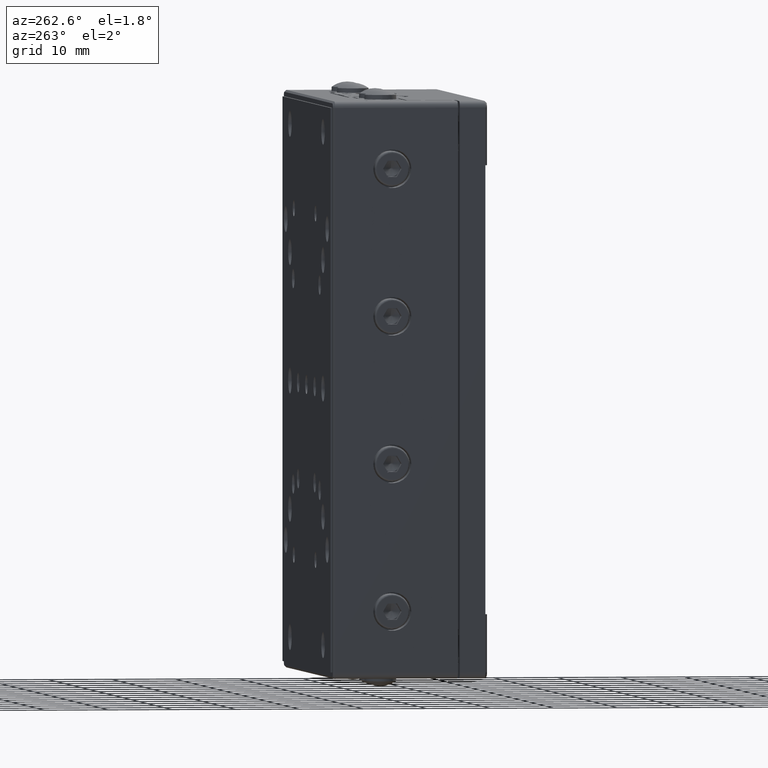
[diagram: clean part render]
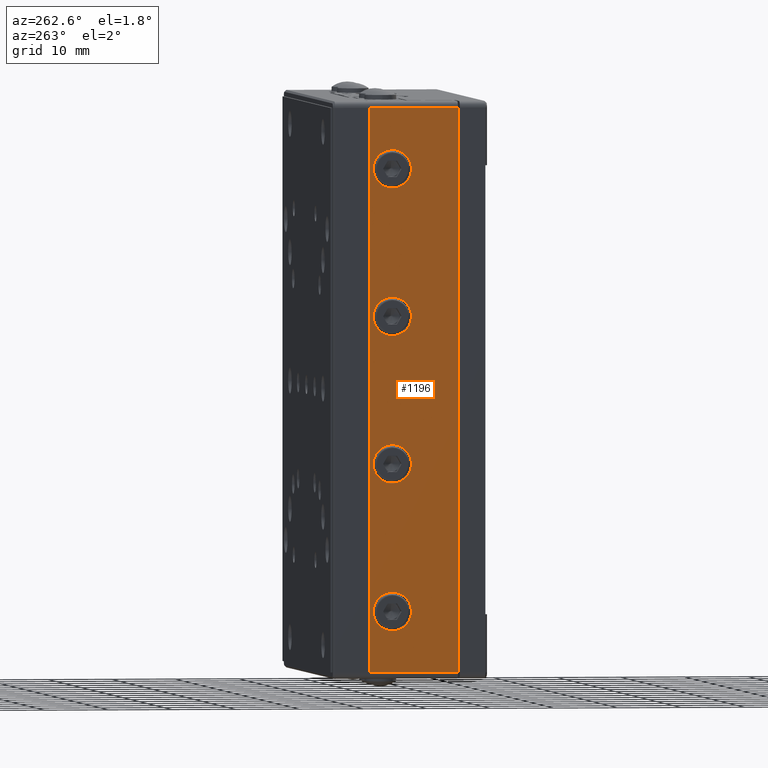
[diagram: same view with one face highlighted and labeled with its STEP entity id]
A machine part, auxiliary view. The second image highlights one B-rep face of the part: STEP entity #1196.
In plain terms, the highlighted planar face has unit normal (1, 0, -0).
Its self-contained STEP definition (entity closure, byte-faithful):
#469 = AXIS2_PLACEMENT_3D ( 'NONE', #18083, #7385, #13891 ) ;
#728 = EDGE_CURVE ( 'NONE', #23251, #27338, #26190, .T. ) ;
#935 = EDGE_CURVE ( 'NONE', #19795, #10286, #17421, .T. ) ;
#976 = DIRECTION ( 'NONE',  ( -0.000000000000000000, 1.000000000000000000, 0.000000000000000000 ) ) ;
#1196 = ADVANCED_FACE ( 'NONE', ( #22352, #5465, #5754, #13931, #3635 ), #18545, .F. ) ;
#1298 = CARTESIAN_POINT ( 'NONE',  ( 45.75000000000000000, -30.00000000000000000, 0.3250000000000045075 ) ) ;
#1660 = EDGE_CURVE ( 'NONE', #27338, #23251, #1930, .T. ) ;
#1697 = EDGE_CURVE ( 'NONE', #11126, #14321, #11787, .T. ) ;
#1930 = CIRCLE ( 'NONE', #17654, 3.000000000000000000 ) ;
#2202 = DIRECTION ( 'NONE',  ( 0.000000000000000000, 0.000000000000000000, -1.000000000000000000 ) ) ;
#2336 = DIRECTION ( 'NONE',  ( 0.000000000000000000, -1.000000000000000000, 0.000000000000000000 ) ) ;
#2493 = DIRECTION ( 'NONE',  ( -1.000000000000000000, 0.000000000000000000, 1.252855843761027702E-16 ) ) ;
#2777 = EDGE_CURVE ( 'NONE', #11126, #24512, #10960, .T. ) ;
#2821 = ORIENTED_EDGE ( 'NONE', *, *, #17473, .F. ) ;
#2888 = DIRECTION ( 'NONE',  ( 0.000000000000000000, 0.000000000000000000, -1.000000000000000000 ) ) ;
#3042 = VERTEX_POINT ( 'NONE', #23421 ) ;
#3531 = CARTESIAN_POINT ( 'NONE',  ( -0.2500000000000000000, -30.00000000000000000, 3.324999999999999734 ) ) ;
#3635 = FACE_BOUND ( 'NONE', #26879, .T. ) ;
#3937 = ORIENTED_EDGE ( 'NONE', *, *, #25389, .T. ) ;
#4516 = CARTESIAN_POINT ( 'NONE',  ( -0.2500000000000000000, -30.00000000000000000, 0.3250000000000060063 ) ) ;
#5339 = VERTEX_POINT ( 'NONE', #27033 ) ;
#5449 = VERTEX_POINT ( 'NONE', #6615 ) ;
#5465 = FACE_BOUND ( 'NONE', #10362, .T. ) ;
#5470 = CARTESIAN_POINT ( 'NONE',  ( -32.75000000000000000, -30.00000000000000000, -6.975000000000000533 ) ) ;
#5754 = FACE_BOUND ( 'NONE', #7868, .T. ) ;
#5787 = DIRECTION ( 'NONE',  ( 0.000000000000000000, -1.000000000000000000, 0.000000000000000000 ) ) ;
#6031 = ORIENTED_EDGE ( 'NONE', *, *, #728, .F. ) ;
#6431 = EDGE_CURVE ( 'NONE', #5449, #3042, #16242, .T. ) ;
#6615 = CARTESIAN_POINT ( 'NONE',  ( -23.25000000000000000, -30.00000000000000000, 0.3250000000000040079 ) ) ;
#7061 = CARTESIAN_POINT ( 'NONE',  ( -23.25000000000000000, -30.00000000000000000, 3.324999999999999734 ) ) ;
#7385 = DIRECTION ( 'NONE',  ( 0.000000000000000000, -1.000000000000000000, 0.000000000000000000 ) ) ;
#7393 = DIRECTION ( 'NONE',  ( 0.000000000000000000, -1.000000000000000000, 0.000000000000000000 ) ) ;
#7479 = LINE ( 'NONE', #14252, #19118 ) ;
#7557 = ORIENTED_EDGE ( 'NONE', *, *, #1660, .F. ) ;
#7812 = DIRECTION ( 'NONE',  ( 0.000000000000000000, 0.000000000000000000, 1.000000000000000000 ) ) ;
#7868 = EDGE_LOOP ( 'NONE', ( #16212, #17514 ) ) ;
#8274 = CARTESIAN_POINT ( 'NONE',  ( 22.75000000000000000, -30.00000000000000000, 0.3250000000000040079 ) ) ;
#8618 = AXIS2_PLACEMENT_3D ( 'NONE', #10511, #2336, #2202 ) ;
#8657 = VECTOR ( 'NONE', #7812, 1000.000000000000000 ) ;
#10286 = VERTEX_POINT ( 'NONE', #24181 ) ;
#10362 = EDGE_LOOP ( 'NONE', ( #7557, #6031 ) ) ;
#10476 = DIRECTION ( 'NONE',  ( 0.000000000000000000, 0.000000000000000000, -1.000000000000000000 ) ) ;
#10511 = CARTESIAN_POINT ( 'NONE',  ( -23.25000000000000000, -30.00000000000000000, 3.324999999999999734 ) ) ;
#10960 = LINE ( 'NONE', #11517, #22584 ) ;
#11126 = VERTEX_POINT ( 'NONE', #25945 ) ;
#11517 = CARTESIAN_POINT ( 'NONE',  ( 56.25000000000000000, -30.00000000000000000, -6.975000000000000533 ) ) ;
#11614 = ORIENTED_EDGE ( 'NONE', *, *, #20915, .F. ) ;
#11787 = LINE ( 'NONE', #13897, #8657 ) ;
#11820 = CARTESIAN_POINT ( 'NONE',  ( 0.000000000000000000, -30.00000000000000000, 0.000000000000000000 ) ) ;
#12344 = DIRECTION ( 'NONE',  ( 0.000000000000000000, 0.000000000000000000, -1.000000000000000000 ) ) ;
#12561 = CARTESIAN_POINT ( 'NONE',  ( 45.75000000000000000, -30.00000000000000000, 3.324999999999999734 ) ) ;
#12676 = EDGE_LOOP ( 'NONE', ( #25851, #3937, #20894, #23924 ) ) ;
#12727 = DIRECTION ( 'NONE',  ( 0.000000000000000000, -1.000000000000000000, 0.000000000000000000 ) ) ;
#13054 = CIRCLE ( 'NONE', #469, 3.000000000000000000 ) ;
#13551 = DIRECTION ( 'NONE',  ( 0.000000000000000000, -1.000000000000000000, 0.000000000000000000 ) ) ;
#13891 = DIRECTION ( 'NONE',  ( 0.000000000000000000, 0.000000000000000000, -1.000000000000000000 ) ) ;
#13897 = CARTESIAN_POINT ( 'NONE',  ( 55.25000000000000000, -30.00000000000000000, 6.924999999999999822 ) ) ;
#13931 = FACE_BOUND ( 'NONE', #24786, .T. ) ;
#14123 = ORIENTED_EDGE ( 'NONE', *, *, #935, .F. ) ;
#14198 = VERTEX_POINT ( 'NONE', #18770 ) ;
#14252 = CARTESIAN_POINT ( 'NONE',  ( -32.75000000000000000, -30.00000000000000000, -6.975000000000000533 ) ) ;
#14321 = VERTEX_POINT ( 'NONE', #14697 ) ;
#14697 = CARTESIAN_POINT ( 'NONE',  ( 55.25000000000000000, -30.00000000000000000, 6.924999999999999822 ) ) ;
#16212 = ORIENTED_EDGE ( 'NONE', *, *, #20734, .F. ) ;
#16242 = CIRCLE ( 'NONE', #8618, 3.000000000000000000 ) ;
#16746 = DIRECTION ( 'NONE',  ( 0.000000000000000000, 0.000000000000000000, -1.000000000000000000 ) ) ;
#16991 = VECTOR ( 'NONE', #26851, 1000.000000000000000 ) ;
#17421 = CIRCLE ( 'NONE', #18763, 3.000000000000000000 ) ;
#17473 = EDGE_CURVE ( 'NONE', #10286, #19795, #13054, .T. ) ;
#17514 = ORIENTED_EDGE ( 'NONE', *, *, #23094, .F. ) ;
#17654 = AXIS2_PLACEMENT_3D ( 'NONE', #18380, #7393, #2888 ) ;
#18083 = CARTESIAN_POINT ( 'NONE',  ( 45.75000000000000000, -30.00000000000000000, 3.324999999999999734 ) ) ;
#18279 = ORIENTED_EDGE ( 'NONE', *, *, #6431, .F. ) ;
#18380 = CARTESIAN_POINT ( 'NONE',  ( -0.2500000000000000000, -30.00000000000000000, 3.324999999999999734 ) ) ;
#18411 = DIRECTION ( 'NONE',  ( 1.000000000000000000, 0.000000000000000000, 0.000000000000000000 ) ) ;
#18418 = VERTEX_POINT ( 'NONE', #8274 ) ;
#18545 = PLANE ( 'NONE',  #18859 ) ;
#18763 = AXIS2_PLACEMENT_3D ( 'NONE', #12561, #25459, #16746 ) ;
#18770 = CARTESIAN_POINT ( 'NONE',  ( -32.75000000000000000, -30.00000000000000000, 6.924999999999999822 ) ) ;
#18859 = AXIS2_PLACEMENT_3D ( 'NONE', #11820, #976, #18411 ) ;
#19118 = VECTOR ( 'NONE', #26906, 1000.000000000000000 ) ;
#19560 = AXIS2_PLACEMENT_3D ( 'NONE', #25119, #23007, #12344 ) ;
#19795 = VERTEX_POINT ( 'NONE', #1298 ) ;
#20109 = AXIS2_PLACEMENT_3D ( 'NONE', #7061, #13551, #24639 ) ;
#20266 = DIRECTION ( 'NONE',  ( 0.000000000000000000, 0.000000000000000000, -1.000000000000000000 ) ) ;
#20644 = LINE ( 'NONE', #26428, #16991 ) ;
#20734 = EDGE_CURVE ( 'NONE', #18418, #5339, #22342, .T. ) ;
#20894 = ORIENTED_EDGE ( 'NONE', *, *, #2777, .F. ) ;
#20915 = EDGE_CURVE ( 'NONE', #3042, #5449, #22813, .T. ) ;
#21196 = EDGE_CURVE ( 'NONE', #14198, #14321, #20644, .T. ) ;
#22342 = CIRCLE ( 'NONE', #26848, 3.000000000000000000 ) ;
#22352 = FACE_OUTER_BOUND ( 'NONE', #12676, .T. ) ;
#22584 = VECTOR ( 'NONE', #2493, 1000.000000000000000 ) ;
#22813 = CIRCLE ( 'NONE', #20109, 3.000000000000000000 ) ;
#23007 = DIRECTION ( 'NONE',  ( 0.000000000000000000, -1.000000000000000000, 0.000000000000000000 ) ) ;
#23094 = EDGE_CURVE ( 'NONE', #5339, #18418, #24521, .T. ) ;
#23251 = VERTEX_POINT ( 'NONE', #27522 ) ;
#23266 = CARTESIAN_POINT ( 'NONE',  ( 22.75000000000000000, -30.00000000000000000, 3.324999999999999734 ) ) ;
#23421 = CARTESIAN_POINT ( 'NONE',  ( -23.25000000000000000, -30.00000000000000000, 6.325000000000000178 ) ) ;
#23924 = ORIENTED_EDGE ( 'NONE', *, *, #1697, .T. ) ;
#24181 = CARTESIAN_POINT ( 'NONE',  ( 45.75000000000000000, -30.00000000000000000, 6.325000000000000178 ) ) ;
#24512 = VERTEX_POINT ( 'NONE', #5470 ) ;
#24521 = CIRCLE ( 'NONE', #19560, 3.000000000000000000 ) ;
#24639 = DIRECTION ( 'NONE',  ( 0.000000000000000000, 0.000000000000000000, -1.000000000000000000 ) ) ;
#24786 = EDGE_LOOP ( 'NONE', ( #18279, #11614 ) ) ;
#25119 = CARTESIAN_POINT ( 'NONE',  ( 22.75000000000000000, -30.00000000000000000, 3.324999999999999734 ) ) ;
#25389 = EDGE_CURVE ( 'NONE', #14198, #24512, #7479, .T. ) ;
#25459 = DIRECTION ( 'NONE',  ( 0.000000000000000000, -1.000000000000000000, 0.000000000000000000 ) ) ;
#25851 = ORIENTED_EDGE ( 'NONE', *, *, #21196, .F. ) ;
#25945 = CARTESIAN_POINT ( 'NONE',  ( 55.25000000000000000, -30.00000000000000000, -6.975000000000000533 ) ) ;
#26190 = CIRCLE ( 'NONE', #27105, 3.000000000000000000 ) ;
#26428 = CARTESIAN_POINT ( 'NONE',  ( -33.75000000000000000, -30.00000000000000000, 6.924999999999999822 ) ) ;
#26848 = AXIS2_PLACEMENT_3D ( 'NONE', #23266, #12727, #10476 ) ;
#26851 = DIRECTION ( 'NONE',  ( 1.000000000000000000, 0.000000000000000000, 0.000000000000000000 ) ) ;
#26879 = EDGE_LOOP ( 'NONE', ( #14123, #2821 ) ) ;
#26906 = DIRECTION ( 'NONE',  ( 0.000000000000000000, 0.000000000000000000, -1.000000000000000000 ) ) ;
#27033 = CARTESIAN_POINT ( 'NONE',  ( 22.75000000000000000, -30.00000000000000000, 6.325000000000000178 ) ) ;
#27105 = AXIS2_PLACEMENT_3D ( 'NONE', #3531, #5787, #20266 ) ;
#27338 = VERTEX_POINT ( 'NONE', #4516 ) ;
#27522 = CARTESIAN_POINT ( 'NONE',  ( -0.2500000000000000000, -30.00000000000000000, 6.325000000000000178 ) ) ;